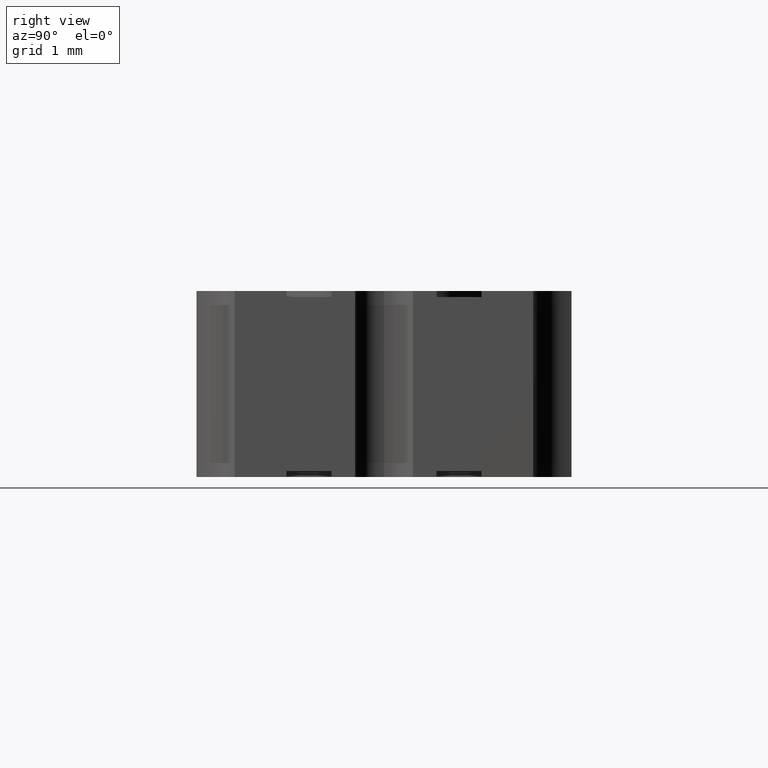
[diagram: clean part render]
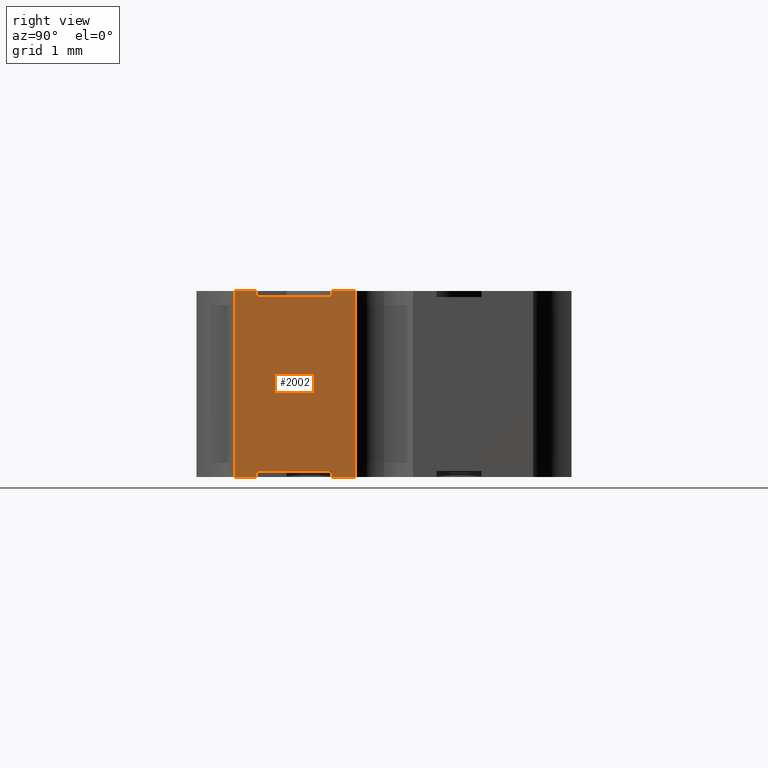
[diagram: same view with one face highlighted and labeled with its STEP entity id]
A machine part, right view. The second image highlights one B-rep face of the part: STEP entity #2002.
In plain terms, the highlighted planar face has unit normal (-1, 0, 0).
Its self-contained STEP definition (entity closure, byte-faithful):
#15 = VERTEX_POINT ( 'NONE', #6924 ) ;
#110 = EDGE_CURVE ( 'NONE', #10787, #10063, #1270, .T. ) ;
#203 = LINE ( 'NONE', #6487, #11252 ) ;
#348 = CARTESIAN_POINT ( 'NONE',  ( 0.09999999999999228950, -0.01750000000005515199, 0.05999999999999999084 ) ) ;
#621 = ORIENTED_EDGE ( 'NONE', *, *, #10439, .T. ) ;
#834 = VERTEX_POINT ( 'NONE', #4782 ) ;
#971 = VECTOR ( 'NONE', #9011, 39.37007874015748143 ) ;
#1018 = CARTESIAN_POINT ( 'NONE',  ( 0.09999999999999228950, -1.280553747030123384E-17, 0.06199999999999999262 ) ) ;
#1135 = ORIENTED_EDGE ( 'NONE', *, *, #11618, .T. ) ;
#1167 = LINE ( 'NONE', #6115, #971 ) ;
#1270 = LINE ( 'NONE', #12131, #8188 ) ;
#1498 = EDGE_CURVE ( 'NONE', #10787, #11054, #5787, .T. ) ;
#1537 = VECTOR ( 'NONE', #4861, 39.37007874015748143 ) ;
#1684 = ORIENTED_EDGE ( 'NONE', *, *, #3133, .T. ) ;
#1813 = ORIENTED_EDGE ( 'NONE', *, *, #2387, .T. ) ;
#1896 = LINE ( 'NONE', #9742, #1537 ) ;
#2002 = ADVANCED_FACE ( 'NONE', ( #11673 ), #12433, .F. ) ;
#2387 = EDGE_CURVE ( 'NONE', #10063, #15, #1167, .T. ) ;
#2504 = CARTESIAN_POINT ( 'NONE',  ( 0.09999999999999228950, -0.04249999999998974043, 0.000000000000000000 ) ) ;
#2611 = CARTESIAN_POINT ( 'NONE',  ( 0.09999999999999228950, -0.01749999999999826694, 0.002000000000000000042 ) ) ;
#2996 = ORIENTED_EDGE ( 'NONE', *, *, #6068, .F. ) ;
#3020 = CARTESIAN_POINT ( 'NONE',  ( 0.09999999999999228950, -0.009682458365518547411, 0.06199999999999999262 ) ) ;
#3080 = ORIENTED_EDGE ( 'NONE', *, *, #110, .T. ) ;
#3133 = EDGE_CURVE ( 'NONE', #5952, #9900, #10085, .T. ) ;
#3154 = VERTEX_POINT ( 'NONE', #5455 ) ;
#3508 = LINE ( 'NONE', #2611, #8182 ) ;
#3623 = CARTESIAN_POINT ( 'NONE',  ( 0.09999999999999228950, -0.009682458365518550880, 0.002000000000000000042 ) ) ;
#3794 = ORIENTED_EDGE ( 'NONE', *, *, #8284, .T. ) ;
#3902 = DIRECTION ( 'NONE',  ( -0.000000000000000000, -0.000000000000000000, -1.000000000000000000 ) ) ;
#3938 = CARTESIAN_POINT ( 'NONE',  ( 0.09999999999999228950, -0.01750000000005515199, 0.06199999999999999262 ) ) ;
#4035 = DIRECTION ( 'NONE',  ( 0.000000000000000000, -1.000000000000000000, 0.000000000000000000 ) ) ;
#4492 = VERTEX_POINT ( 'NONE', #6477 ) ;
#4603 = DIRECTION ( 'NONE',  ( -0.000000000000000000, 1.000000000000000000, -0.000000000000000000 ) ) ;
#4652 = VECTOR ( 'NONE', #8036, 39.37007874015748143 ) ;
#4756 = DIRECTION ( 'NONE',  ( -0.000000000000000000, 1.000000000000000000, -0.000000000000000000 ) ) ;
#4782 = CARTESIAN_POINT ( 'NONE',  ( 0.09999999999999228950, -0.01749999999999826694, 0.002000000000000000042 ) ) ;
#4861 = DIRECTION ( 'NONE',  ( -0.000000000000000000, -0.000000000000000000, -1.000000000000000000 ) ) ;
#5455 = CARTESIAN_POINT ( 'NONE',  ( 0.09999999999999228950, -0.04970294145924519097, 0.06199999999999999262 ) ) ;
#5524 = CARTESIAN_POINT ( 'NONE',  ( 0.09999999999999228950, -1.280553747030123384E-17, 0.06199999999999999262 ) ) ;
#5591 = DIRECTION ( 'NONE',  ( 0.000000000000000000, -1.000000000000000000, 0.000000000000000000 ) ) ;
#5606 = VECTOR ( 'NONE', #4035, 39.37007874015748143 ) ;
#5624 = DIRECTION ( 'NONE',  ( -1.000000000000000000, 0.000000000000000000, 0.000000000000000000 ) ) ;
#5756 = DIRECTION ( 'NONE',  ( 0.000000000000000000, 0.000000000000000000, 1.000000000000000000 ) ) ;
#5787 = LINE ( 'NONE', #9642, #11506 ) ;
#5952 = VERTEX_POINT ( 'NONE', #8100 ) ;
#6068 = EDGE_CURVE ( 'NONE', #7142, #9900, #8799, .T. ) ;
#6115 = CARTESIAN_POINT ( 'NONE',  ( 0.09999999999999228950, -0.04249999999998974737, 0.05999999999999999084 ) ) ;
#6270 = VECTOR ( 'NONE', #5591, 39.37007874015748143 ) ;
#6477 = CARTESIAN_POINT ( 'NONE',  ( 0.09999999999999228950, -0.04970294145924519097, 0.000000000000000000 ) ) ;
#6487 = CARTESIAN_POINT ( 'NONE',  ( 0.09999999999999228950, -0.01749999999999826694, 0.002000000000000000042 ) ) ;
#6748 = DIRECTION ( 'NONE',  ( -0.000000000000000000, -0.000000000000000000, 1.000000000000000000 ) ) ;
#6924 = CARTESIAN_POINT ( 'NONE',  ( 0.09999999999999228950, -0.04249999999998974737, 0.06199999999999999262 ) ) ;
#7118 = LINE ( 'NONE', #1018, #5606 ) ;
#7142 = VERTEX_POINT ( 'NONE', #3020 ) ;
#7153 = DIRECTION ( 'NONE',  ( 0.000000000000000000, 0.000000000000000000, -1.000000000000000000 ) ) ;
#7516 = ORIENTED_EDGE ( 'NONE', *, *, #11847, .F. ) ;
#7646 = LINE ( 'NONE', #5524, #6270 ) ;
#7848 = AXIS2_PLACEMENT_3D ( 'NONE', #3623, #5624, #5756 ) ;
#8036 = DIRECTION ( 'NONE',  ( -0.000000000000000000, 1.000000000000000000, -0.000000000000000000 ) ) ;
#8099 = ORIENTED_EDGE ( 'NONE', *, *, #1498, .F. ) ;
#8100 = CARTESIAN_POINT ( 'NONE',  ( 0.09999999999999228950, -0.01749999999999826694, 0.000000000000000000 ) ) ;
#8182 = VECTOR ( 'NONE', #4603, 39.37007874015748143 ) ;
#8188 = VECTOR ( 'NONE', #8210, 39.37007874015748143 ) ;
#8210 = DIRECTION ( 'NONE',  ( 0.000000000000000000, -1.000000000000000000, 0.000000000000000000 ) ) ;
#8284 = EDGE_CURVE ( 'NONE', #7142, #11054, #7646, .T. ) ;
#8359 = LINE ( 'NONE', #12271, #10208 ) ;
#8799 = LINE ( 'NONE', #12716, #10698 ) ;
#8927 = CARTESIAN_POINT ( 'NONE',  ( 0.09999999999999228950, -0.04249999999998974043, 0.002000000000000000042 ) ) ;
#8948 = VERTEX_POINT ( 'NONE', #2504 ) ;
#8982 = EDGE_LOOP ( 'NONE', ( #8099, #3080, #1813, #621, #12673, #1135, #7516, #9948, #11892, #1684, #2996, #3794 ) ) ;
#9011 = DIRECTION ( 'NONE',  ( -0.000000000000000000, -0.000000000000000000, 1.000000000000000000 ) ) ;
#9316 = CARTESIAN_POINT ( 'NONE',  ( 0.09999999999999228950, -0.04249999999998974737, 0.05999999999999999084 ) ) ;
#9407 = CARTESIAN_POINT ( 'NONE',  ( 0.09999999999999228950, -0.009682458365518550880, 0.000000000000000000 ) ) ;
#9642 = CARTESIAN_POINT ( 'NONE',  ( 0.09999999999999228950, -0.01750000000005515199, 0.05999999999999999084 ) ) ;
#9721 = EDGE_CURVE ( 'NONE', #3154, #4492, #1896, .T. ) ;
#9742 = CARTESIAN_POINT ( 'NONE',  ( 0.09999999999999228950, -0.04970294145924519097, 0.002000000000000000042 ) ) ;
#9900 = VERTEX_POINT ( 'NONE', #9407 ) ;
#9948 = ORIENTED_EDGE ( 'NONE', *, *, #12734, .T. ) ;
#10001 = VERTEX_POINT ( 'NONE', #10819 ) ;
#10063 = VERTEX_POINT ( 'NONE', #9316 ) ;
#10085 = LINE ( 'NONE', #12084, #4652 ) ;
#10208 = VECTOR ( 'NONE', #4756, 39.37007874015748143 ) ;
#10439 = EDGE_CURVE ( 'NONE', #15, #3154, #7118, .T. ) ;
#10698 = VECTOR ( 'NONE', #3902, 39.37007874015748143 ) ;
#10787 = VERTEX_POINT ( 'NONE', #348 ) ;
#10819 = CARTESIAN_POINT ( 'NONE',  ( 0.09999999999999228950, -0.04249999999998974043, 0.002000000000000000042 ) ) ;
#10857 = DIRECTION ( 'NONE',  ( 0.000000000000000000, 0.000000000000000000, -1.000000000000000000 ) ) ;
#11054 = VERTEX_POINT ( 'NONE', #3938 ) ;
#11252 = VECTOR ( 'NONE', #7153, 39.37007874015748143 ) ;
#11506 = VECTOR ( 'NONE', #6748, 39.37007874015748143 ) ;
#11618 = EDGE_CURVE ( 'NONE', #4492, #8948, #8359, .T. ) ;
#11673 = FACE_OUTER_BOUND ( 'NONE', #8982, .T. ) ;
#11759 = LINE ( 'NONE', #8927, #12685 ) ;
#11847 = EDGE_CURVE ( 'NONE', #10001, #8948, #11759, .T. ) ;
#11892 = ORIENTED_EDGE ( 'NONE', *, *, #12432, .T. ) ;
#12084 = CARTESIAN_POINT ( 'NONE',  ( 0.09999999999999228950, -0.009682458365518550880, 0.000000000000000000 ) ) ;
#12131 = CARTESIAN_POINT ( 'NONE',  ( 0.09999999999999228950, -1.280553747030123384E-17, 0.05999999999999999084 ) ) ;
#12271 = CARTESIAN_POINT ( 'NONE',  ( 0.09999999999999228950, -0.009682458365518550880, 0.000000000000000000 ) ) ;
#12432 = EDGE_CURVE ( 'NONE', #834, #5952, #203, .T. ) ;
#12433 = PLANE ( 'NONE',  #7848 ) ;
#12673 = ORIENTED_EDGE ( 'NONE', *, *, #9721, .T. ) ;
#12685 = VECTOR ( 'NONE', #10857, 39.37007874015748143 ) ;
#12716 = CARTESIAN_POINT ( 'NONE',  ( 0.09999999999999228950, -0.009682458365518550880, 0.002000000000000000042 ) ) ;
#12734 = EDGE_CURVE ( 'NONE', #10001, #834, #3508, .T. ) ;